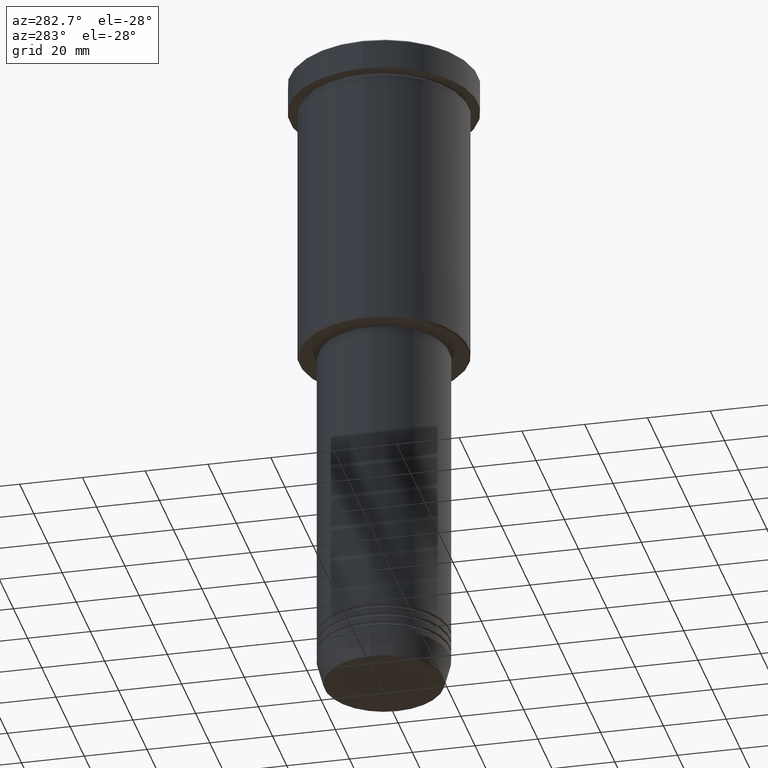
[diagram: clean part render]
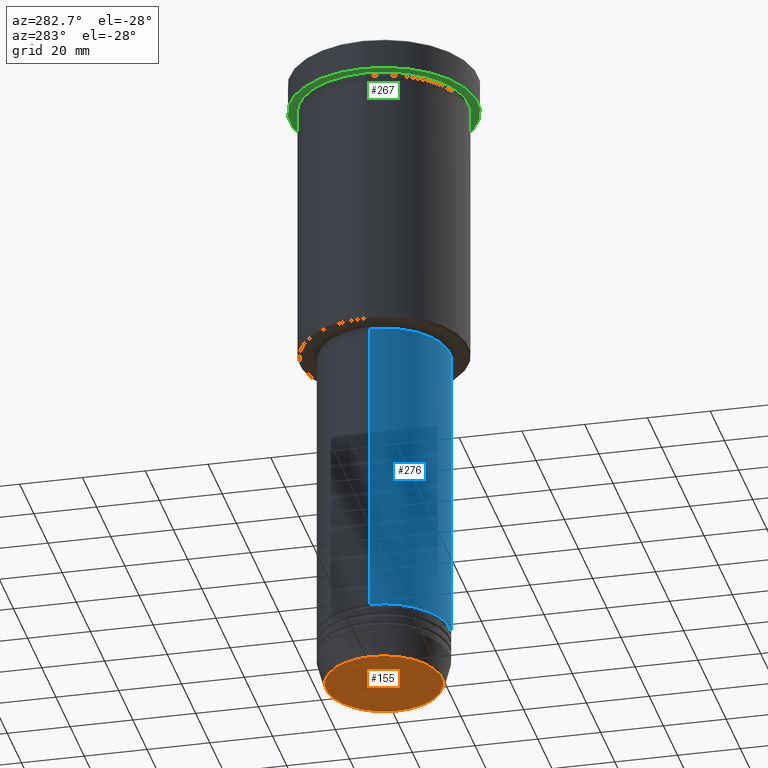
[diagram: same view with three faces highlighted in distinct colors, each labeled with its STEP entity id]
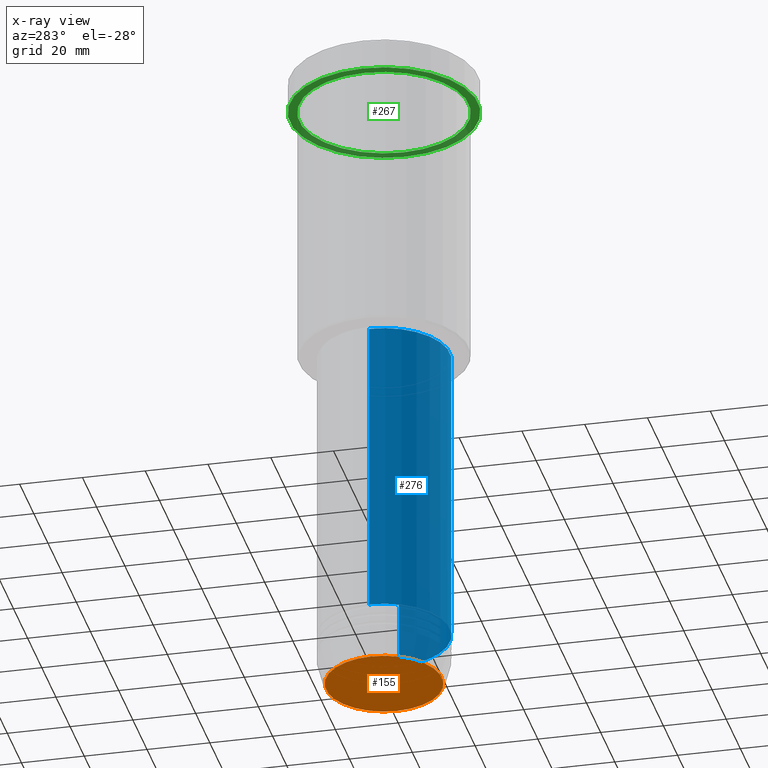
[diagram: x-ray of the same camera — body ghosted, the three highlighted faces saturated]
A machine part, auxiliary view with three faces highlighted in distinct colors.
The next image is the same camera in x-ray (body ghosted, the three faces saturated) — at least one of them is partly hidden behind the body in this view.
Their STEP definitions:

[orange] entity #155 — the highlighted planar face has unit normal (0, -0, 1).
#6 = EDGE_CURVE ( 'NONE', #832, #411, #802, .T. ) ;
#21 = DIRECTION ( 'NONE',  ( 1.000000000000000000, 0.000000000000000000, 0.000000000000000000 ) ) ;
#155 = ADVANCED_FACE ( 'NONE', ( #158 ), #1163, .F. ) ;
#158 = FACE_OUTER_BOUND ( 'NONE', #774, .T. ) ;
#215 = AXIS2_PLACEMENT_3D ( 'NONE', #294, #1016, #21 ) ;
#294 = CARTESIAN_POINT ( 'NONE',  ( 0.000000000000000000, 0.000000000000000000, -211.0000000000000284 ) ) ;
#339 = CARTESIAN_POINT ( 'NONE',  ( 18.47274296656153680, 0.000000000000000000, -211.0000000000000284 ) ) ;
#342 = DIRECTION ( 'NONE',  ( 0.000000000000000000, 0.000000000000000000, -1.000000000000000000 ) ) ;
#348 = ORIENTED_EDGE ( 'NONE', *, *, #1114, .T. ) ;
#366 = DIRECTION ( 'NONE',  ( 1.000000000000000000, 0.000000000000000000, 0.000000000000000000 ) ) ;
#411 = VERTEX_POINT ( 'NONE', #1075 ) ;
#524 = CARTESIAN_POINT ( 'NONE',  ( 0.000000000000000000, 0.000000000000000000, -211.0000000000000284 ) ) ;
#774 = EDGE_LOOP ( 'NONE', ( #1089, #348 ) ) ;
#782 = AXIS2_PLACEMENT_3D ( 'NONE', #524, #888, #1071 ) ;
#795 = CARTESIAN_POINT ( 'NONE',  ( 0.000000000000000000, 0.000000000000000000, -211.0000000000000284 ) ) ;
#802 = CIRCLE ( 'NONE', #823, 18.47274296656153680 ) ;
#823 = AXIS2_PLACEMENT_3D ( 'NONE', #795, #342, #366 ) ;
#832 = VERTEX_POINT ( 'NONE', #339 ) ;
#888 = DIRECTION ( 'NONE',  ( 0.000000000000000000, -0.000000000000000000, 1.000000000000000000 ) ) ;
#1016 = DIRECTION ( 'NONE',  ( 0.000000000000000000, 0.000000000000000000, -1.000000000000000000 ) ) ;
#1071 = DIRECTION ( 'NONE',  ( 1.000000000000000000, 0.000000000000000000, 0.000000000000000000 ) ) ;
#1075 = CARTESIAN_POINT ( 'NONE',  ( -18.47274296656153680, 2.291831503831603257E-15, -211.0000000000000284 ) ) ;
#1089 = ORIENTED_EDGE ( 'NONE', *, *, #6, .T. ) ;
#1114 = EDGE_CURVE ( 'NONE', #411, #832, #1158, .T. ) ;
#1158 = CIRCLE ( 'NONE', #215, 18.47274296656153680 ) ;
#1163 = PLANE ( 'NONE',  #782 ) ;

[blue] entity #276 — the highlighted cylindrical surface (partial cylindrical patch) has radius 21 mm, axis along (-0, -0, 1).
#50 = DIRECTION ( 'NONE',  ( -0.000000000000000000, -0.000000000000000000, 1.000000000000000000 ) ) ;
#62 = VERTEX_POINT ( 'NONE', #430 ) ;
#63 = CARTESIAN_POINT ( 'NONE',  ( 21.00000000000000000, 0.000000000000000000, -97.00000000000000000 ) ) ;
#64 = CARTESIAN_POINT ( 'NONE',  ( -21.00000000000000000, 2.571758278209441661E-15, 0.000000000000000000 ) ) ;
#78 = AXIS2_PLACEMENT_3D ( 'NONE', #1098, #446, #91 ) ;
#91 = DIRECTION ( 'NONE',  ( 1.000000000000000000, 0.000000000000000000, 0.000000000000000000 ) ) ;
#112 = ORIENTED_EDGE ( 'NONE', *, *, #462, .T. ) ;
#122 = VECTOR ( 'NONE', #50, 1000.000000000000000 ) ;
#135 = LINE ( 'NONE', #64, #1101 ) ;
#152 = CARTESIAN_POINT ( 'NONE',  ( 21.00000000000000000, 0.000000000000000000, 0.000000000000000000 ) ) ;
#166 = ORIENTED_EDGE ( 'NONE', *, *, #959, .T. ) ;
#212 = CYLINDRICAL_SURFACE ( 'NONE', #1160, 21.00000000000000000 ) ;
#216 = DIRECTION ( 'NONE',  ( 1.000000000000000000, 0.000000000000000000, 0.000000000000000000 ) ) ;
#224 = CARTESIAN_POINT ( 'NONE',  ( -21.00000000000000000, 2.571758278209441661E-15, -97.00000000000000000 ) ) ;
#276 = ADVANCED_FACE ( 'NONE', ( #573 ), #212, .T. ) ;
#383 = AXIS2_PLACEMENT_3D ( 'NONE', #1166, #953, #216 ) ;
#389 = VERTEX_POINT ( 'NONE', #1143 ) ;
#430 = CARTESIAN_POINT ( 'NONE',  ( 21.00000000000000000, 0.000000000000000000, -193.9999999999999716 ) ) ;
#445 = EDGE_CURVE ( 'NONE', #389, #1056, #135, .T. ) ;
#446 = DIRECTION ( 'NONE',  ( -0.000000000000000000, -0.000000000000000000, 1.000000000000000000 ) ) ;
#462 = EDGE_CURVE ( 'NONE', #389, #62, #1085, .T. ) ;
#553 = DIRECTION ( 'NONE',  ( 1.000000000000000000, 0.000000000000000000, 0.000000000000000000 ) ) ;
#573 = FACE_OUTER_BOUND ( 'NONE', #1029, .T. ) ;
#614 = ORIENTED_EDGE ( 'NONE', *, *, #943, .F. ) ;
#766 = CARTESIAN_POINT ( 'NONE',  ( 0.000000000000000000, 0.000000000000000000, 0.000000000000000000 ) ) ;
#841 = VERTEX_POINT ( 'NONE', #63 ) ;
#870 = DIRECTION ( 'NONE',  ( -0.000000000000000000, -0.000000000000000000, 1.000000000000000000 ) ) ;
#871 = LINE ( 'NONE', #152, #122 ) ;
#943 = EDGE_CURVE ( 'NONE', #1056, #841, #1083, .T. ) ;
#953 = DIRECTION ( 'NONE',  ( -0.000000000000000000, -0.000000000000000000, 1.000000000000000000 ) ) ;
#959 = EDGE_CURVE ( 'NONE', #62, #841, #871, .T. ) ;
#1029 = EDGE_LOOP ( 'NONE', ( #1104, #112, #166, #614 ) ) ;
#1056 = VERTEX_POINT ( 'NONE', #224 ) ;
#1083 = CIRCLE ( 'NONE', #383, 21.00000000000000000 ) ;
#1085 = CIRCLE ( 'NONE', #78, 21.00000000000000000 ) ;
#1098 = CARTESIAN_POINT ( 'NONE',  ( 0.000000000000000000, 0.000000000000000000, -193.9999999999999716 ) ) ;
#1101 = VECTOR ( 'NONE', #870, 1000.000000000000000 ) ;
#1104 = ORIENTED_EDGE ( 'NONE', *, *, #445, .F. ) ;
#1130 = DIRECTION ( 'NONE',  ( -0.000000000000000000, -0.000000000000000000, 1.000000000000000000 ) ) ;
#1143 = CARTESIAN_POINT ( 'NONE',  ( -21.00000000000000000, 2.571758278209441661E-15, -193.9999999999999716 ) ) ;
#1160 = AXIS2_PLACEMENT_3D ( 'NONE', #766, #1130, #553 ) ;
#1166 = CARTESIAN_POINT ( 'NONE',  ( 0.000000000000000000, 0.000000000000000000, -97.00000000000000000 ) ) ;

[green] entity #267 — the highlighted planar face has unit normal (0, 0, -1).
#4 = DIRECTION ( 'NONE',  ( -1.000000000000000000, 0.000000000000000000, 0.000000000000000000 ) ) ;
#12 = AXIS2_PLACEMENT_3D ( 'NONE', #831, #640, #95 ) ;
#16 = VERTEX_POINT ( 'NONE', #52 ) ;
#26 = VERTEX_POINT ( 'NONE', #225 ) ;
#33 = ORIENTED_EDGE ( 'NONE', *, *, #528, .F. ) ;
#48 = ORIENTED_EDGE ( 'NONE', *, *, #538, .T. ) ;
#52 = CARTESIAN_POINT ( 'NONE',  ( -27.00000000000000355, 0.000000000000000000, -9.999999999999992895 ) ) ;
#95 = DIRECTION ( 'NONE',  ( -1.000000000000000000, 0.000000000000000000, 0.000000000000000000 ) ) ;
#128 = CARTESIAN_POINT ( 'NONE',  ( 30.00000000000000000, 0.000000000000000000, -9.999999999999992895 ) ) ;
#172 = AXIS2_PLACEMENT_3D ( 'NONE', #493, #662, #654 ) ;
#220 = VERTEX_POINT ( 'NONE', #128 ) ;
#225 = CARTESIAN_POINT ( 'NONE',  ( -30.00000000000000000, 3.673940397442059178E-15, -9.999999999999992895 ) ) ;
#261 = CIRCLE ( 'NONE', #172, 30.00000000000000000 ) ;
#265 = DIRECTION ( 'NONE',  ( -0.000000000000000000, -0.000000000000000000, 1.000000000000000000 ) ) ;
#267 = ADVANCED_FACE ( 'NONE', ( #406, #401 ), #834, .T. ) ;
#277 = CARTESIAN_POINT ( 'NONE',  ( 0.000000000000000000, 0.000000000000000000, -9.999999999999992895 ) ) ;
#401 = FACE_OUTER_BOUND ( 'NONE', #521, .T. ) ;
#406 = FACE_BOUND ( 'NONE', #556, .T. ) ;
#434 = CARTESIAN_POINT ( 'NONE',  ( 27.00000000000000355, 3.306546357697854128E-15, -9.999999999999992895 ) ) ;
#485 = EDGE_CURVE ( 'NONE', #16, #915, #1043, .T. ) ;
#493 = CARTESIAN_POINT ( 'NONE',  ( 0.000000000000000000, 0.000000000000000000, -9.999999999999992895 ) ) ;
#521 = EDGE_LOOP ( 'NONE', ( #1008, #33 ) ) ;
#528 = EDGE_CURVE ( 'NONE', #26, #220, #945, .T. ) ;
#538 = EDGE_CURVE ( 'NONE', #915, #16, #661, .T. ) ;
#556 = EDGE_LOOP ( 'NONE', ( #670, #48 ) ) ;
#564 = AXIS2_PLACEMENT_3D ( 'NONE', #630, #992, #4 ) ;
#630 = CARTESIAN_POINT ( 'NONE',  ( 0.000000000000000000, 0.000000000000000000, -9.999999999999992895 ) ) ;
#640 = DIRECTION ( 'NONE',  ( -0.000000000000000000, -0.000000000000000000, 1.000000000000000000 ) ) ;
#654 = DIRECTION ( 'NONE',  ( 1.000000000000000000, 0.000000000000000000, 0.000000000000000000 ) ) ;
#661 = CIRCLE ( 'NONE', #564, 27.00000000000000355 ) ;
#662 = DIRECTION ( 'NONE',  ( -0.000000000000000000, -0.000000000000000000, 1.000000000000000000 ) ) ;
#670 = ORIENTED_EDGE ( 'NONE', *, *, #485, .T. ) ;
#749 = EDGE_CURVE ( 'NONE', #220, #26, #261, .T. ) ;
#753 = DIRECTION ( 'NONE',  ( -1.000000000000000000, 0.000000000000000000, -0.000000000000000000 ) ) ;
#785 = AXIS2_PLACEMENT_3D ( 'NONE', #277, #265, #1094 ) ;
#831 = CARTESIAN_POINT ( 'NONE',  ( 0.000000000000000000, 0.000000000000000000, -9.999999999999992895 ) ) ;
#834 = PLANE ( 'NONE',  #1120 ) ;
#915 = VERTEX_POINT ( 'NONE', #434 ) ;
#934 = DIRECTION ( 'NONE',  ( 0.000000000000000000, 0.000000000000000000, -1.000000000000000000 ) ) ;
#945 = CIRCLE ( 'NONE', #785, 30.00000000000000000 ) ;
#992 = DIRECTION ( 'NONE',  ( -0.000000000000000000, -0.000000000000000000, 1.000000000000000000 ) ) ;
#1008 = ORIENTED_EDGE ( 'NONE', *, *, #749, .F. ) ;
#1043 = CIRCLE ( 'NONE', #12, 27.00000000000000355 ) ;
#1094 = DIRECTION ( 'NONE',  ( 1.000000000000000000, 0.000000000000000000, 0.000000000000000000 ) ) ;
#1120 = AXIS2_PLACEMENT_3D ( 'NONE', #1134, #934, #753 ) ;
#1134 = CARTESIAN_POINT ( 'NONE',  ( 0.000000000000000000, 30.00000000000000000, -9.999999999999992895 ) ) ;